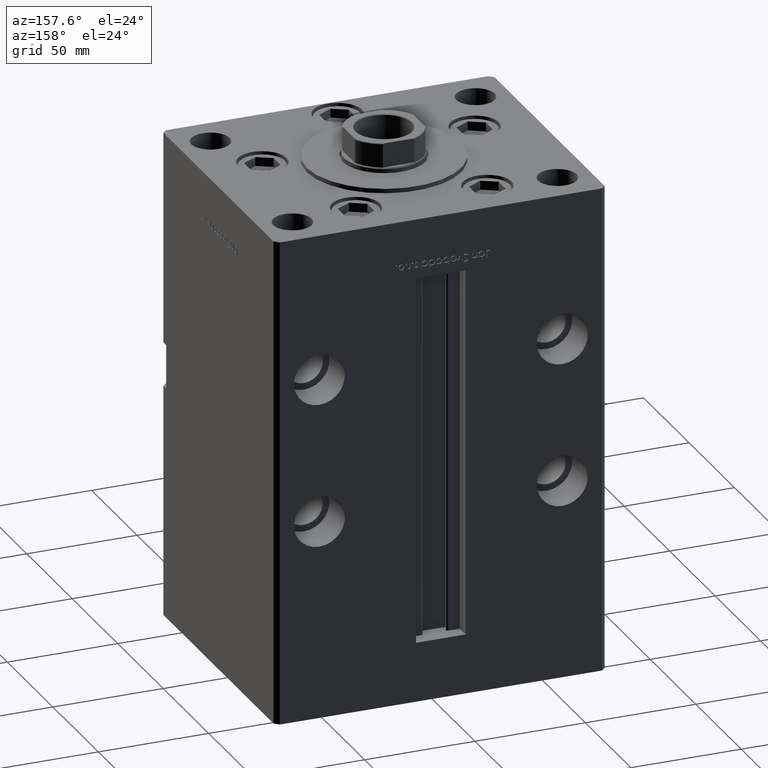
[diagram: clean part render]
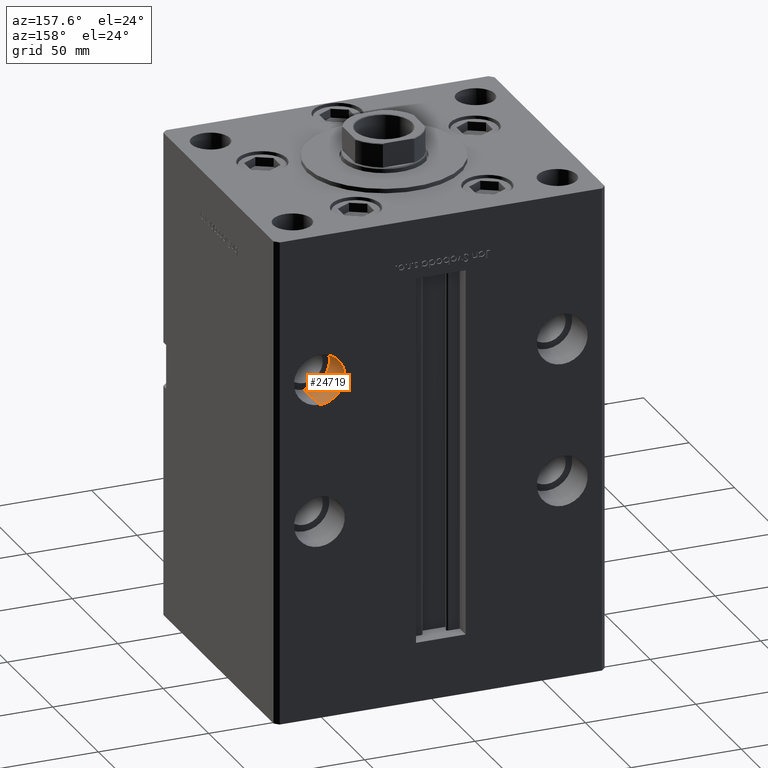
[diagram: same view with one face highlighted and labeled with its STEP entity id]
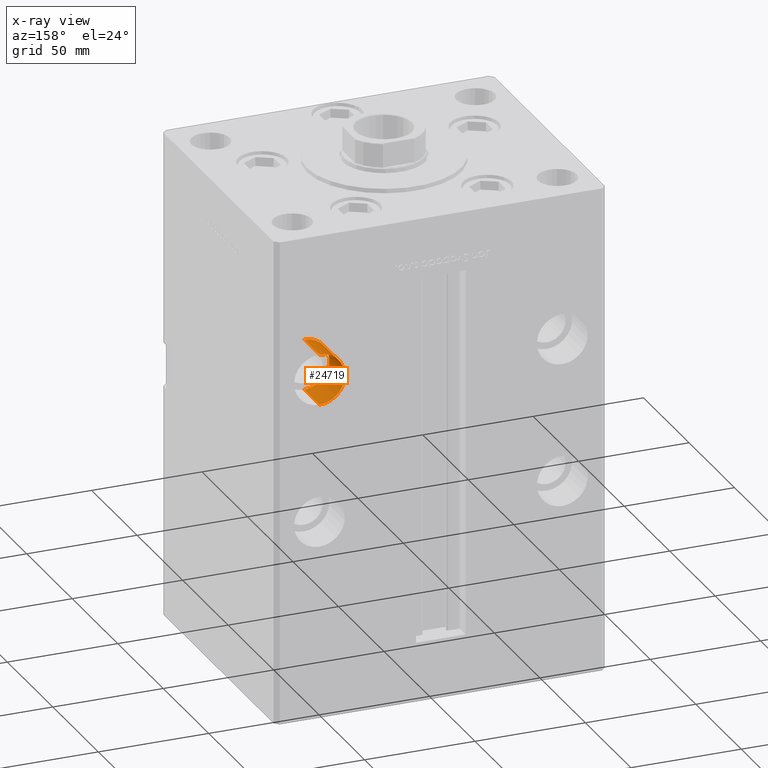
[diagram: x-ray of the same camera — body ghosted, the highlighted face saturated]
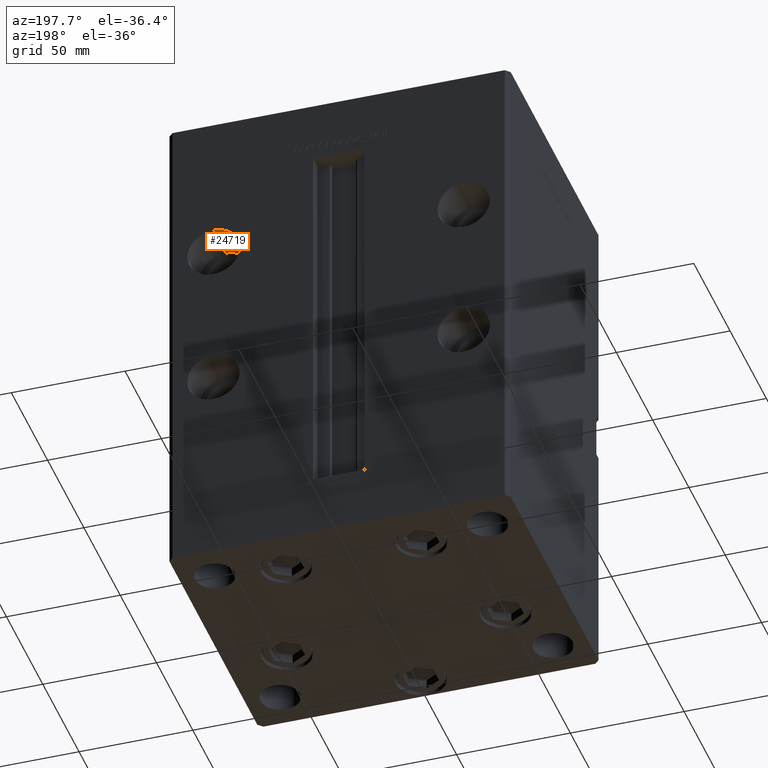
[diagram: same view with one face highlighted and labeled with its STEP entity id]
A machine part, auxiliary view. The second image highlights one B-rep face of the part: STEP entity #24719.
The next image is the same camera in x-ray: the body ghosted, the highlighted face saturated — about 0% of this face is hidden behind the body in this view.
A second angle (auxiliary view) of the same face is appended — the face is thin or edge-on in the first view.
In plain terms, the highlighted cylindrical surface (edge-blend (fillet) strip) has radius 11.5 mm, axis along (0, 1, 0).
Its self-contained STEP definition (entity closure, byte-faithful):
#820 = EDGE_LOOP ( 'NONE', ( #23443, #2261, #14723, #7773 ) ) ;
#1674 = DIRECTION ( 'NONE',  ( -0.000000000000000000, 1.000000000000000000, -0.000000000000000000 ) ) ;
#2261 = ORIENTED_EDGE ( 'NONE', *, *, #13487, .T. ) ;
#4652 = DIRECTION ( 'NONE',  ( 0.000000000000000000, 0.000000000000000000, 1.000000000000000000 ) ) ;
#4914 = CYLINDRICAL_SURFACE ( 'NONE', #20787, 11.50000000000001066 ) ;
#5219 = CARTESIAN_POINT ( 'NONE',  ( 55.00000000000000000, 62.50000000000000000, 128.0000000000000000 ) ) ;
#7773 = ORIENTED_EDGE ( 'NONE', *, *, #13688, .F. ) ;
#8416 = CARTESIAN_POINT ( 'NONE',  ( 55.00000000000000000, 62.50000000000000000, 116.5000000000000000 ) ) ;
#12781 = DIRECTION ( 'NONE',  ( 0.000000000000000000, 1.000000000000000000, 0.000000000000000000 ) ) ;
#13487 = EDGE_CURVE ( 'NONE', #42670, #48164, #38107, .T. ) ;
#13688 = EDGE_CURVE ( 'NONE', #32973, #49644, #15057, .T. ) ;
#14723 = ORIENTED_EDGE ( 'NONE', *, *, #29708, .T. ) ;
#15057 = LINE ( 'NONE', #31399, #53027 ) ;
#15303 = VECTOR ( 'NONE', #1674, 1000.000000000000000 ) ;
#16748 = CIRCLE ( 'NONE', #52713, 11.50000000000001066 ) ;
#19954 = CIRCLE ( 'NONE', #46452, 11.50000000000001066 ) ;
#20787 = AXIS2_PLACEMENT_3D ( 'NONE', #21277, #50463, #4652 ) ;
#21277 = CARTESIAN_POINT ( 'NONE',  ( 55.00000000000000000, 45.50000000000000000, 128.0000000000000000 ) ) ;
#21571 = DIRECTION ( 'NONE',  ( 0.000000000000000000, 1.000000000000000000, 0.000000000000000000 ) ) ;
#22041 = CARTESIAN_POINT ( 'NONE',  ( 55.00000000000000000, 45.50000000000000000, 116.5000000000000000 ) ) ;
#22057 = FACE_OUTER_BOUND ( 'NONE', #820, .T. ) ;
#23443 = ORIENTED_EDGE ( 'NONE', *, *, #36905, .F. ) ;
#24719 = ADVANCED_FACE ( 'NONE', ( #22057 ), #4914, .F. ) ;
#25783 = CARTESIAN_POINT ( 'NONE',  ( 55.00000000000000000, 45.50000000000000000, 139.5000000000000000 ) ) ;
#28942 = CARTESIAN_POINT ( 'NONE',  ( 55.00000000000000000, 62.50000000000000000, 139.5000000000000000 ) ) ;
#29708 = EDGE_CURVE ( 'NONE', #48164, #49644, #19954, .T. ) ;
#30121 = DIRECTION ( 'NONE',  ( 0.000000000000000000, 0.000000000000000000, 1.000000000000000000 ) ) ;
#30308 = CARTESIAN_POINT ( 'NONE',  ( 55.00000000000000000, 45.50000000000000000, 116.5000000000000000 ) ) ;
#31399 = CARTESIAN_POINT ( 'NONE',  ( 55.00000000000000000, 45.50000000000000000, 139.5000000000000000 ) ) ;
#32973 = VERTEX_POINT ( 'NONE', #25783 ) ;
#36905 = EDGE_CURVE ( 'NONE', #42670, #32973, #16748, .T. ) ;
#37939 = CARTESIAN_POINT ( 'NONE',  ( 55.00000000000000000, 45.50000000000000000, 128.0000000000000000 ) ) ;
#38107 = LINE ( 'NONE', #22041, #15303 ) ;
#41429 = DIRECTION ( 'NONE',  ( 0.000000000000000000, 0.000000000000000000, 1.000000000000000000 ) ) ;
#42670 = VERTEX_POINT ( 'NONE', #30308 ) ;
#46452 = AXIS2_PLACEMENT_3D ( 'NONE', #5219, #21571, #30121 ) ;
#47754 = DIRECTION ( 'NONE',  ( -0.000000000000000000, 1.000000000000000000, -0.000000000000000000 ) ) ;
#48164 = VERTEX_POINT ( 'NONE', #8416 ) ;
#49644 = VERTEX_POINT ( 'NONE', #28942 ) ;
#50463 = DIRECTION ( 'NONE',  ( -0.000000000000000000, 1.000000000000000000, -0.000000000000000000 ) ) ;
#52713 = AXIS2_PLACEMENT_3D ( 'NONE', #37939, #12781, #41429 ) ;
#53027 = VECTOR ( 'NONE', #47754, 1000.000000000000000 ) ;